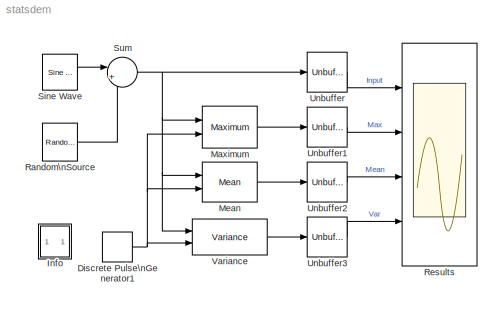
MODEL statsdem
KIND model
CONFIG AbsTol = 1e-6
CONFIG FixedStep = auto
CONFIG MaxStep = auto
CONFIG MinStep = auto
CONFIG RelTol = 1e-3
CONFIG Solver = FixedStepDiscrete
CONFIG SolverMode = Auto
CONFIG StartTime = 0.0
CONFIG StopTime = inf
BLOCK [DiscretePulseGenerator] Discrete Pulse\nGenerator1
  Amplitude = 1
  Period = 100
  PhaseDelay = 0
  PulseWidth = 1
  SampleTime = 1
  VectorParams1D = on
BLOCK [SubSystem] Info
  MaskDisplay = disp('?')
  MaskIconFrame = on
  MaskIconOpaque = on
  MaskIconRotate = none
  MaskIconUnits = autoscale
  Ports = []
  RTWFcnNameOpts = Auto
  RTWFileNameOpts = Auto
  RTWSystemCode = Auto
  ShowPortLabels = on
  TreatAsAtomicUnit = off
BLOCK [Reference] Maximum  REF=dspstat3/Maximum
  Ports = [2, 1]
  SourceBlock = dspstat3/Maximum
  SourceType = Maximum
  fcn = Running
  reset = Non-zero sample
BLOCK [Reference] Mean  REF=dspstat3/Mean
  Ports = [2, 1]
  SourceBlock = dspstat3/Mean
  SourceType = Mean
  reset_popup = Non-zero sample
  run = on
BLOCK [Reference] Random\nSource  REF=dspsrcs3/Random\nSource
  Diagnostics = AllowInheritedTsInSrc
  Inherit = off
  Max = 1
  Mean = 0
  Min = 0
  OutComplex = Real
  Ports = [0, 1]
  SampFrame = 32
  SampMode = Discrete
  SampTime = 1/32
  Seed = 1
  SourceBlock = dspsrcs3/Random\nSource
  SourceType = Random Source
  SrcType = Gaussian
  Var = 0.1
BLOCK [Scope] Results
  DataFormat = Structure
  Decimation = 1
  Floating = off
  Grid = on
  LimitDataPoints = on
  MaxDataPoints = 1000
  NumInputPorts = 4
  Ports = [4]
  SampleInput = off
  SampleTime = 0
  SaveName = ScopeData
  SaveToWorkspace = off
  TickLabels = OneTimeTick
  TimeRange = 100
  YMax = 1.5~1.75~0.8~0.9
  YMin = -1.5~-0.25~-0.1~0
  ZoomMode = on
BLOCK [Reference] Sine Wave  REF=dspsrcs3/Sine Wave
  Amplitude = 1
  CompMethod = Trigonometric Fcn
  Frequency = 0.05
  OutComplex = Real
  Phase = 0
  Ports = [0, 1]
  ResetState = Restart at time zero
  SampleMode = Discrete
  SampleTime = 1/32
  SamplesPerFrame = 32
  SourceBlock = dspsrcs3/Sine Wave
  SourceType = Sine Wave
BLOCK [Sum] Sum
  IconShape = round
  Inputs = |++
  Ports = [2, 1]
  SaturateOnIntegerOverflow = on
BLOCK [Reference] Unbuffer  REF=dspbuff3/Unbuffer
  Ports = [1, 1]
  SourceBlock = dspbuff3/Unbuffer
  SourceType = Unbuffer
  ic = 0
BLOCK [Reference] Unbuffer1  REF=dspbuff3/Unbuffer
  Ports = [1, 1]
  SourceBlock = dspbuff3/Unbuffer
  SourceType = Unbuffer
  ic = 0
BLOCK [Reference] Unbuffer2  REF=dspbuff3/Unbuffer
  Ports = [1, 1]
  SourceBlock = dspbuff3/Unbuffer
  SourceType = Unbuffer
  ic = 0
BLOCK [Reference] Unbuffer3  REF=dspbuff3/Unbuffer
  Ports = [1, 1]
  SourceBlock = dspbuff3/Unbuffer
  SourceType = Unbuffer
  ic = 0
BLOCK [Reference] Variance  REF=dspstat3/Variance
  Ports = [2, 1]
  SourceBlock = dspstat3/Variance
  SourceType = Variance
  reset_popup = Non-zero sample
  run = on
NET Discrete Pulse\nGenerator1:1 -> Maximum:2, Mean:2, Variance:2
LINE Maximum:1 -> Unbuffer1:1
LINE Mean:1 -> Unbuffer2:1
LINE Random\nSource:1 -> Sum:2
LINE Sine Wave:1 -> Sum:1
NET Sum:1 -> Maximum:1, Mean:1, Unbuffer:1, Variance:1
LINE Unbuffer1:1 -> Results:2
LINE Unbuffer2:1 -> Results:3
LINE Unbuffer3:1 -> Results:4
LINE Unbuffer:1 -> Results:1
LINE Variance:1 -> Unbuffer3:1
note: NET lines group one-source signal fan-out (src -> all destinations, sorted); 1:1 wires keep LINE
